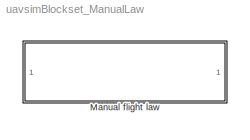
MODEL uavsimBlockset_ManualLaw
KIND library
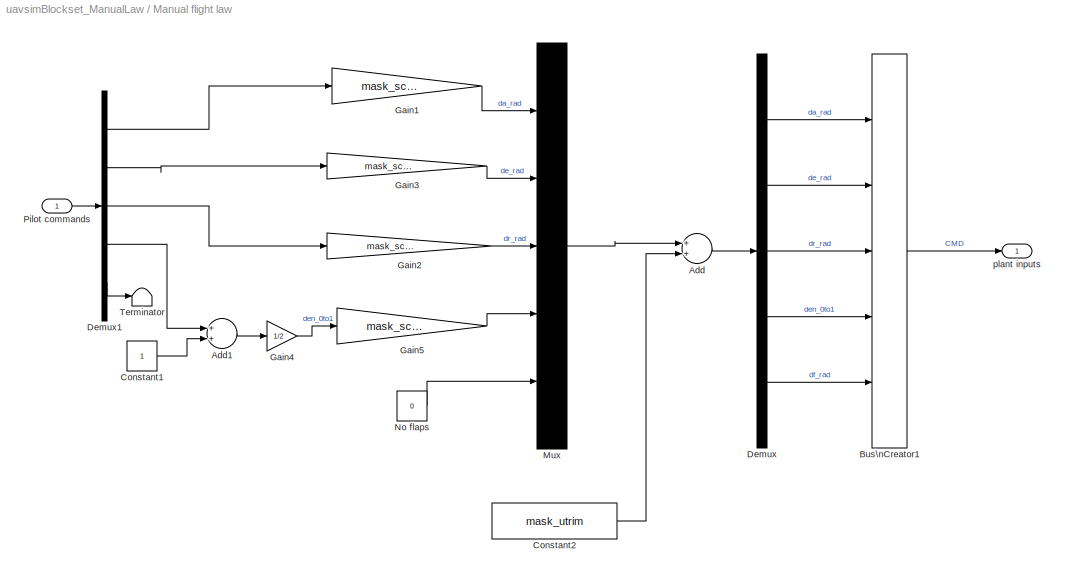
BLOCK [SubSystem] Manual flight law
  FunctionWithSeparateData = off
  MaskHideContents = off
  MinAlgLoopOccurrences = off
  Opaque = off
  Ports = [1, 1]
  PropExecContextOutsideSubsystem = off
  RTWSystemCode = Auto
  RequestExecContextInheritance = off
  SID = 3929
BLOCK [Sum] Manual flight law/Add
  InputSameDT = off
  OutDataTypeStr = Inherit: Inherit via internal rule
  Ports = [2, 1]
  SID = 4381
  SaturateOnIntegerOverflow = off
BLOCK [Sum] Manual flight law/Add1
  InputSameDT = off
  OutDataTypeStr = Inherit: Inherit via internal rule
  Ports = [2, 1]
  SID = 3932
  SaturateOnIntegerOverflow = off
BLOCK [BusCreator] Manual flight law/Bus\nCreator1
  DisplayOption = bar
  Inputs = 5
  NonVirtualBus = on
  OutDataTypeStr = Bus: CMD
  Ports = [5, 1]
  SID = 3933
BLOCK [Constant] Manual flight law/Constant1
  SID = 3935
BLOCK [Constant] Manual flight law/Constant2
  SID = 4382
  Value = mask_utrim
BLOCK [Demux] Manual flight law/Demux
  DisplayOption = bar
  Outputs = 5
  Ports = [1, 5]
  SID = 3936
BLOCK [Demux] Manual flight law/Demux1
  DisplayOption = bar
  Outputs = [1 1 1 1 6]
  Ports = [1, 5]
  SID = 3937
BLOCK [Gain] Manual flight law/Gain1
  Gain = mask_scale_da
  OutDataTypeStr = Inherit: Inherit via internal rule
  ParamDataTypeStr = Inherit: Inherit via internal rule
  SID = 3938
  SaturateOnIntegerOverflow = off
BLOCK [Gain] Manual flight law/Gain2
  Gain = mask_scale_dr
  OutDataTypeStr = Inherit: Inherit via internal rule
  ParamDataTypeStr = Inherit: Inherit via internal rule
  SID = 3939
  SaturateOnIntegerOverflow = off
BLOCK [Gain] Manual flight law/Gain3
  Gain = mask_scale_de
  OutDataTypeStr = Inherit: Inherit via internal rule
  ParamDataTypeStr = Inherit: Inherit via internal rule
  SID = 3940
  SaturateOnIntegerOverflow = off
BLOCK [Gain] Manual flight law/Gain4
  Gain = 1/2
  OutDataTypeStr = Inherit: Inherit via internal rule
  ParamDataTypeStr = Inherit: Inherit via internal rule
  SID = 3941
  SaturateOnIntegerOverflow = off
BLOCK [Gain] Manual flight law/Gain5
  Gain = mask_scale_den
  OutDataTypeStr = Inherit: Inherit via internal rule
  ParamDataTypeStr = Inherit: Inherit via internal rule
  SID = 4284
  SaturateOnIntegerOverflow = off
BLOCK [Mux] Manual flight law/Mux
  DisplayOption = bar
  Inputs = 5
  Ports = [5, 1]
  SID = 3942
BLOCK [Constant] Manual flight law/No flaps
  SID = 4383
  Value = 0
BLOCK [Inport] Manual flight law/Pilot commands
  IconDisplay = Port number
  SID = 3930
BLOCK [Terminator] Manual flight law/Terminator
  SID = 3945
BLOCK [Outport] Manual flight law/plant inputs
  IconDisplay = Port number
  OutDataTypeStr = Bus: CMD
  SID = 3950
LINE Manual flight law/Add1:1 -> Manual flight law/Gain4:1
LINE Manual flight law/Add:1 -> Manual flight law/Demux:1
LINE Manual flight law/Bus\nCreator1:1 -> Manual flight law/plant inputs:1
LINE Manual flight law/Constant1:1 -> Manual flight law/Add1:2
LINE Manual flight law/Constant2:1 -> Manual flight law/Add:2
LINE Manual flight law/Demux1:1 -> Manual flight law/Gain1:1
LINE Manual flight law/Demux1:2 -> Manual flight law/Gain3:1
LINE Manual flight law/Demux1:3 -> Manual flight law/Gain2:1
LINE Manual flight law/Demux1:4 -> Manual flight law/Add1:1
LINE Manual flight law/Demux1:5 -> Manual flight law/Terminator:1
LINE Manual flight law/Demux:1 -> Manual flight law/Bus\nCreator1:1
LINE Manual flight law/Demux:2 -> Manual flight law/Bus\nCreator1:2
LINE Manual flight law/Demux:3 -> Manual flight law/Bus\nCreator1:3
LINE Manual flight law/Demux:4 -> Manual flight law/Bus\nCreator1:4
LINE Manual flight law/Demux:5 -> Manual flight law/Bus\nCreator1:5
LINE Manual flight law/Gain1:1 -> Manual flight law/Mux:1
LINE Manual flight law/Gain2:1 -> Manual flight law/Mux:3
LINE Manual flight law/Gain3:1 -> Manual flight law/Mux:2
LINE Manual flight law/Gain4:1 -> Manual flight law/Gain5:1
LINE Manual flight law/Gain5:1 -> Manual flight law/Mux:4
LINE Manual flight law/Mux:1 -> Manual flight law/Add:1
LINE Manual flight law/No flaps:1 -> Manual flight law/Mux:5
LINE Manual flight law/Pilot commands:1 -> Manual flight law/Demux1:1
